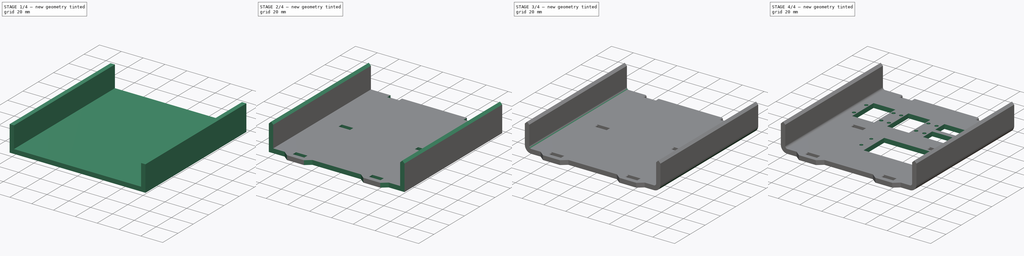
[diagram: build sequence overview — one tinted view per stage of 4, left to right]
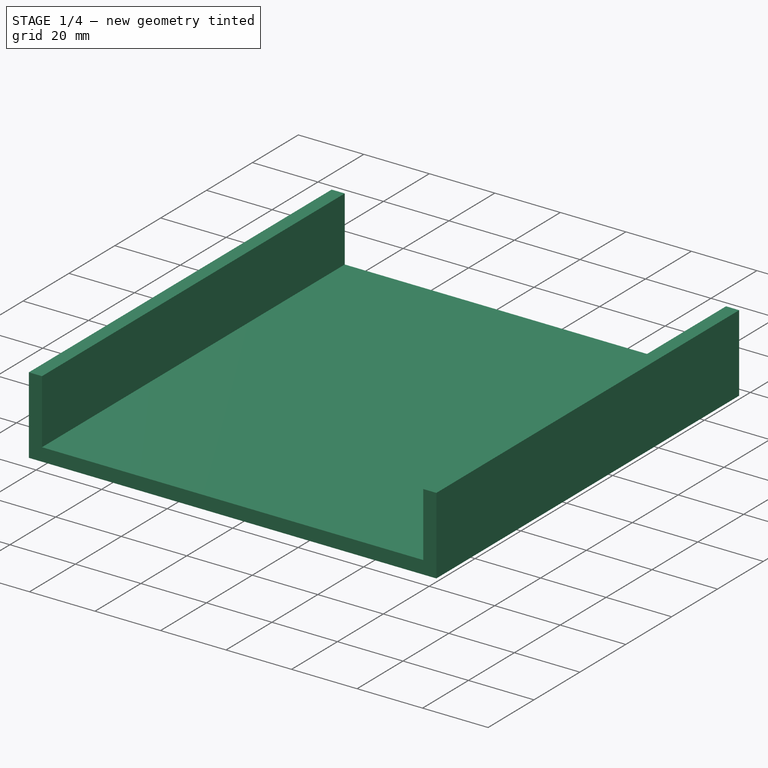
[diagram: stage 1 of 4 — iso view after this stage's code; geometry added in this stage tinted green]
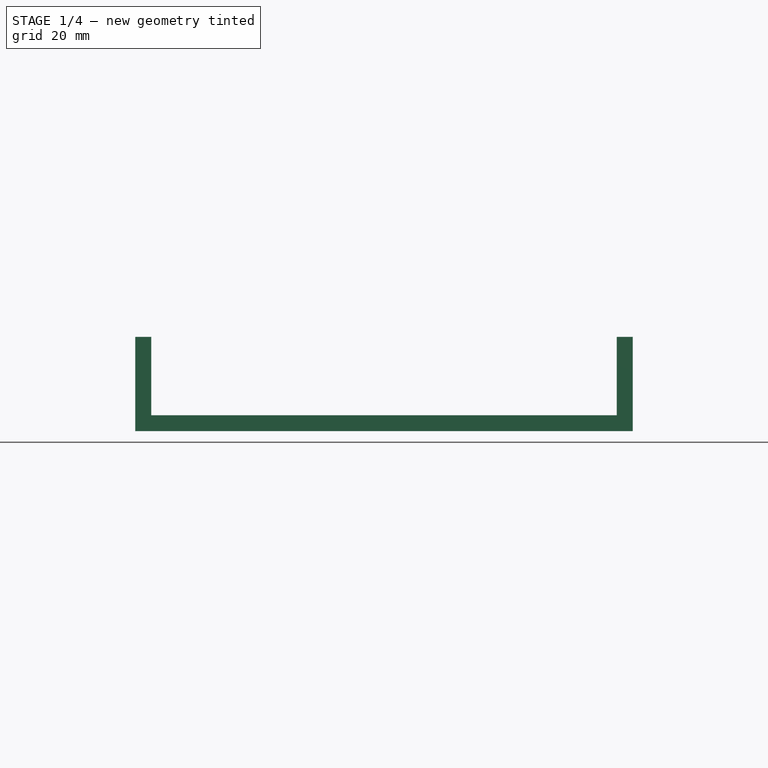
[diagram: stage 1 of 4 — front view after this stage's code; geometry added in this stage tinted green]
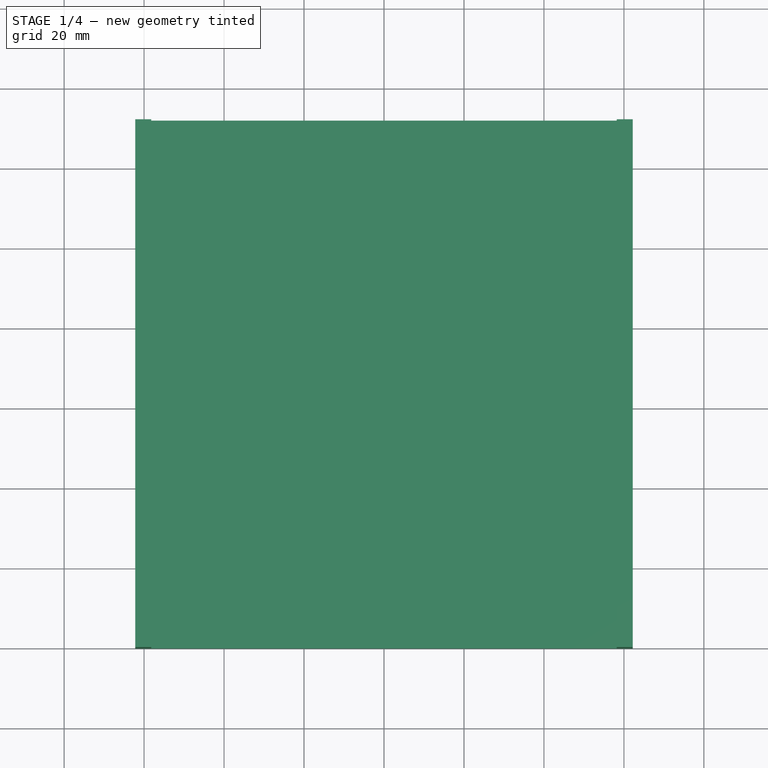
[diagram: stage 1 of 4 — top view after this stage's code; geometry added in this stage tinted green]
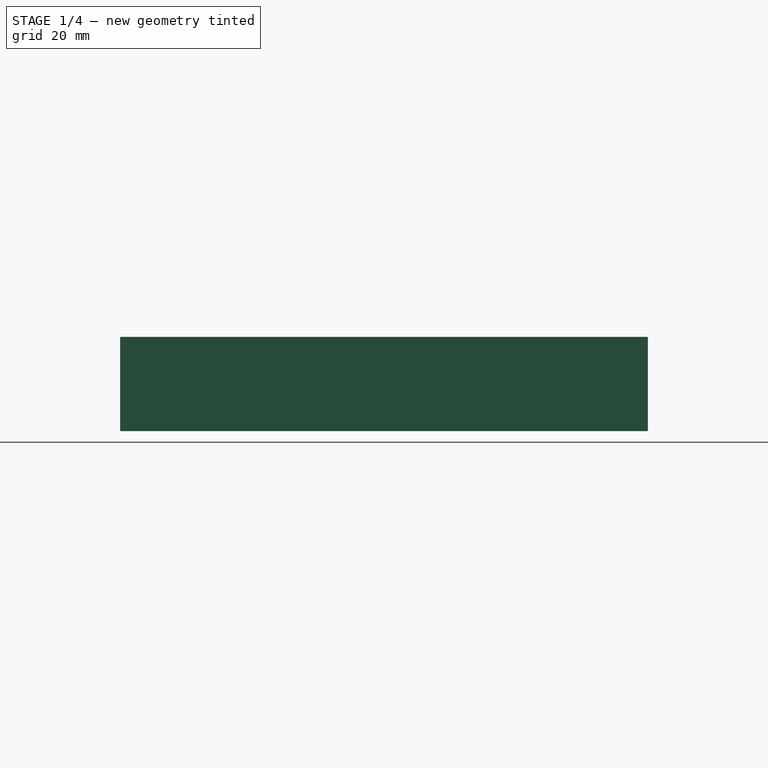
[diagram: stage 1 of 4 — right view after this stage's code; geometry added in this stage tinted green]
FCSTD DOCUMENT  (FreeCAD 0.18R16131 (Git))
Label: Back
License: All rights reserved
LicenseURL: http://en.wikipedia.org/wiki/All_rights_reserved
objects: Sketcher::SketchObject×5, PartDesign::Pad×3, Part::Fillet×3, PartDesign::Pocket×2, PartDesign::Body×2, Part::FeaturePython×1, PartDesign::FeatureBase×1, App::Part×1
note: 22 computed .brp shape members not serialized (recipe doc carries the construction recipe); baked Part::Feature solids carry a one-line shape summary decoded from their .brp

FEATURE [Sketcher::SketchObject] Sketch
  MapMode = 5
  Support = -> [XY_Plane001]
  sketch-geometry (4):
    g0: LineSegment StartX=-62.2 StartY=0 StartZ=0 EndX=62.2 EndY=0 EndZ=0
    g1: LineSegment StartX=62.2 StartY=0 StartZ=0 EndX=62.2 EndY=132 EndZ=0
    g2: LineSegment StartX=62.2 StartY=132 StartZ=0 EndX=-62.2 EndY=132 EndZ=0
    g3: LineSegment StartX=-62.2 StartY=132 StartZ=0 EndX=-62.2 EndY=0 EndZ=0
  constraints (11):
    c: Coincident(g0,g1)
    c: Coincident(g1,g2)
    c: Coincident(g2,g3)
    c: Coincident(g3,g0)
    c: Horizontal(g2)
    c: Vertical(g1)
    c: Vertical(g3)
    c: PointOnObject(g0,g-1)
    c: Symmetric(g0,g0,g-2)
    c: Distance(g0) = 124.4
    c: Distance(g3) = 132
FEATURE [PartDesign::Pad] Pad
  Length = 4
  Length2 = 100
  Profile = -> Sketch
  Reversed = true
  Type = 0
FEATURE [Sketcher::SketchObject] Sketch001
  MapMode = 5
  Support = -> [XY_Plane001]
  sketch-geometry (8):
    g0: LineSegment StartX=-58.2 StartY=0 StartZ=0 EndX=-62.2 EndY=0 EndZ=0
    g1: LineSegment StartX=-62.2 StartY=0 StartZ=0 EndX=-62.2 EndY=132 EndZ=0
    g2: LineSegment StartX=-62.2 StartY=132 StartZ=0 EndX=-58.2 EndY=132 EndZ=0
    g3: LineSegment StartX=-58.2 StartY=132 StartZ=0 EndX=-58.2 EndY=0 EndZ=0
    g4: LineSegment StartX=58.2 StartY=0 StartZ=0 EndX=62.2 EndY=0 EndZ=0
    g5: LineSegment StartX=62.2 StartY=0 StartZ=0 EndX=62.2 EndY=132 EndZ=0
    g6: LineSegment StartX=62.2 StartY=132 StartZ=0 EndX=58.2 EndY=132 EndZ=0
    g7: LineSegment StartX=58.2 StartY=132 StartZ=0 EndX=58.2 EndY=0 EndZ=0
  constraints (23):
    c: Coincident(g0,g1)
    c: Coincident(g1,g2)
    c: Coincident(g2,g3)
    c: Coincident(g3,g0)
    c: Horizontal(g0)
    c: Horizontal(g2)
    c: Vertical(g1)
    c: Vertical(g3)
    c: Coincident(g4,g5)
    c: Coincident(g5,g6)
    c: Coincident(g6,g7)
    c: Coincident(g7,g4)
    c: Horizontal(g4)
    c: Horizontal(g6)
    c: Vertical(g5)
    c: Vertical(g7)
    c: Symmetric(g0,g4,g-2)
    c: PointOnObject(g0,g-1)
    c: Distance(g3) = 132
    c: Equal(g3,g7)
    c: Distance(g0,g4) = 116.4
    c: Equal(g2,g6)
    c: Distance(g2) = 4
FEATURE [PartDesign::Pad] Pad001
  BaseFeature = -> Pad
  Length = 19.6
  Length2 = 100
  Profile = -> Sketch001
  Type = 0
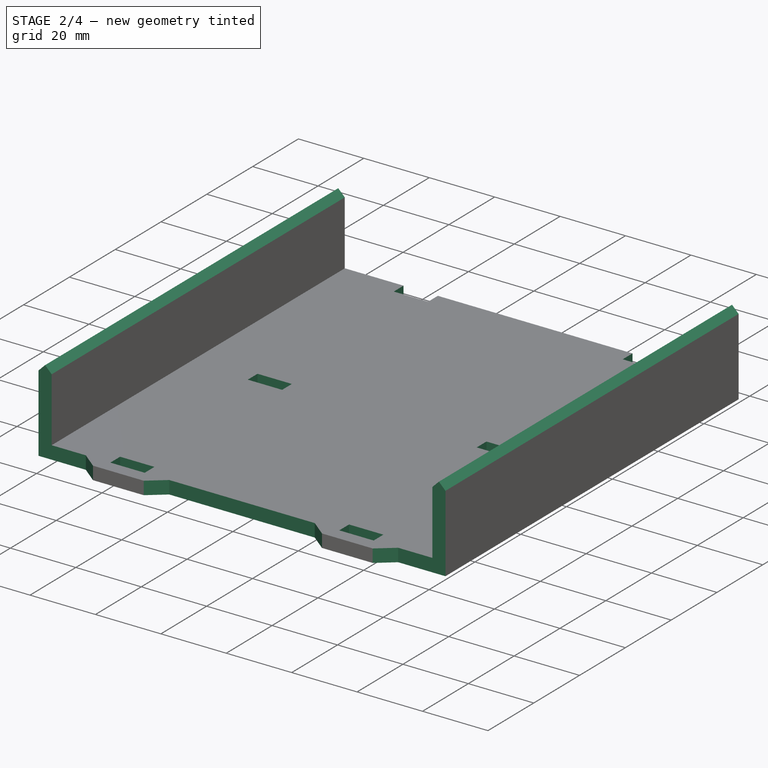
[diagram: stage 2 of 4 — iso view after this stage's code; geometry added in this stage tinted green]
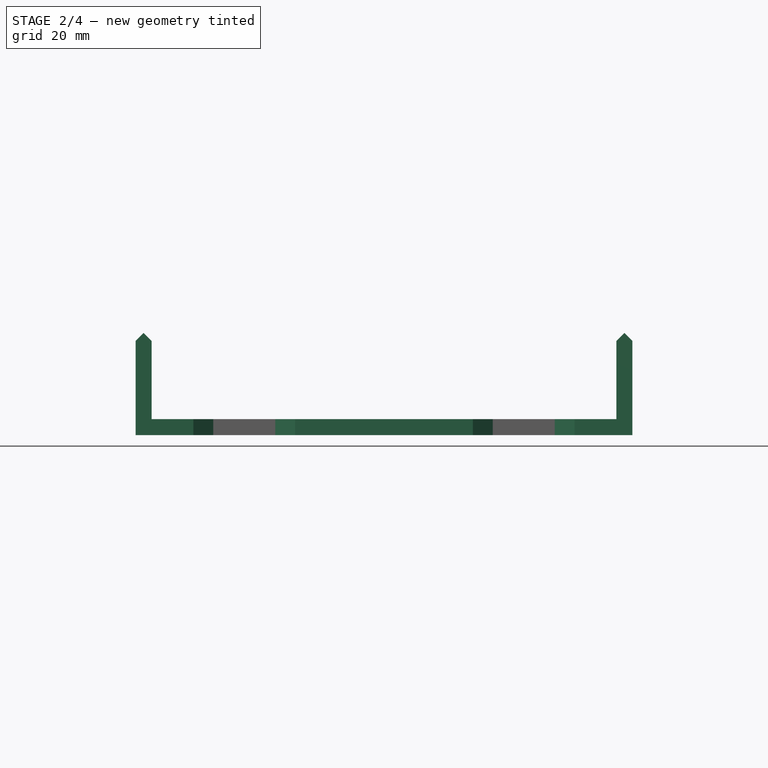
[diagram: stage 2 of 4 — front view after this stage's code; geometry added in this stage tinted green]
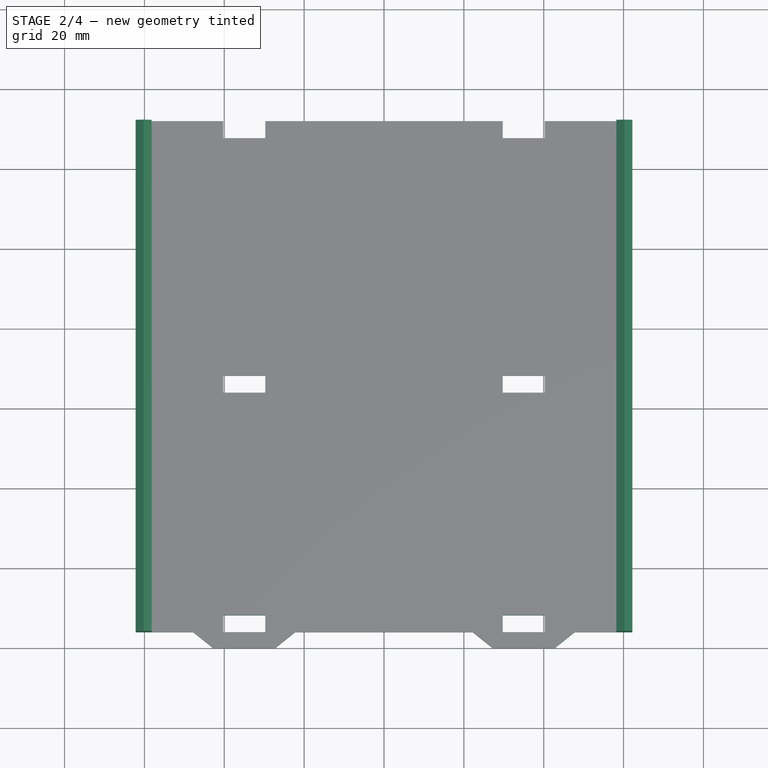
[diagram: stage 2 of 4 — top view after this stage's code; geometry added in this stage tinted green]
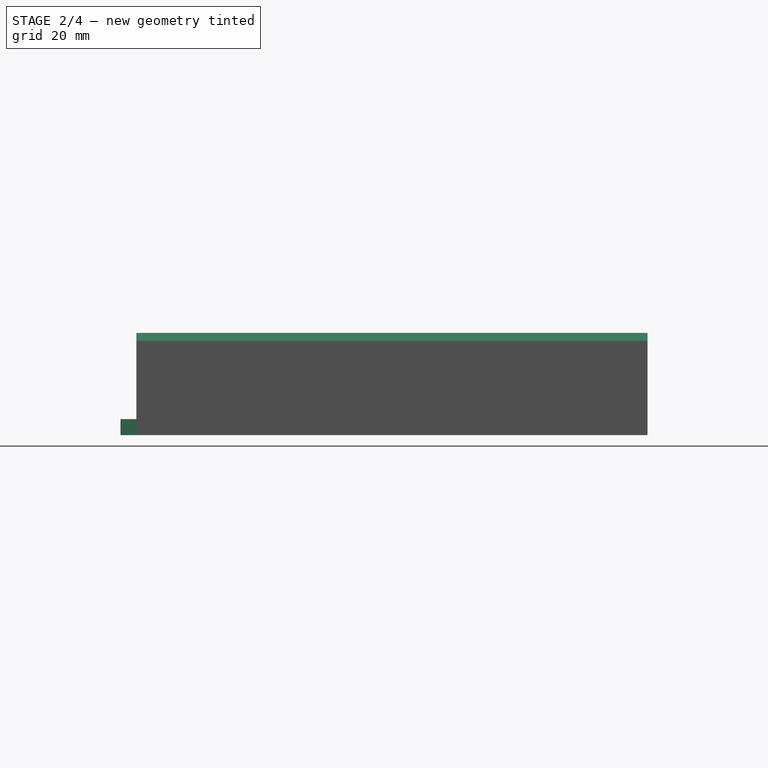
[diagram: stage 2 of 4 — right view after this stage's code; geometry added in this stage tinted green]
FEATURE [Sketcher::SketchObject] Sketch002
  MapMode = 5
  Placement = pos=(0,0,0) rot=(1,0,0;1.5708rad)
  Support = -> [XZ_Plane001]
  sketch-geometry (6):
    g0: LineSegment StartX=-58.2 StartY=19.6 StartZ=0 EndX=-62.2 EndY=19.6 EndZ=0
    g1: LineSegment StartX=-62.2 StartY=19.6 StartZ=0 EndX=-60.2 EndY=21.6 EndZ=0
    g2: LineSegment StartX=-60.2 StartY=21.6 StartZ=0 EndX=-58.2 EndY=19.6 EndZ=0
    g3: LineSegment StartX=58.2 StartY=19.6 StartZ=0 EndX=62.2 EndY=19.6 EndZ=0
    g4: LineSegment StartX=62.2 StartY=19.6 StartZ=0 EndX=60.2 EndY=21.6 EndZ=0
    g5: LineSegment StartX=60.2 StartY=21.6 StartZ=0 EndX=58.2 EndY=19.6 EndZ=0
  constraints (17):
    c: Coincident(g2,g1)
    c: Coincident(g2,g0)
    c: Coincident(g1,g0)
    c: Horizontal(g0)
    c: Distance(g0) = 4
    c: Distance(g1,g0) = 2
    c: Equal(g1,g2)
    c: Coincident(g5,g4)
    c: Coincident(g5,g3)
    c: Coincident(g4,g3)
    c: Horizontal(g3)
    c: Equal(g4,g5)
    c: Equal(g0,g3)
    c: Equal(g5,g1)
    c: Symmetric(g3,g0,g-2)
    c: DistanceY(g-1,g0) = 19.6
    c: DistanceX(g-2,g0) = -62.2
FEATURE [PartDesign::Pad] Pad002
  BaseFeature = -> Pad001
  Length = 132
  Length2 = 100
  Profile = -> Sketch002
  Reversed = true
  Type = 0
FEATURE [Sketcher::SketchObject] Sketch003
  MapMode = 5
  Support = -> [XY_Plane001]
  sketch-geometry (48):
    g0: LineSegment StartX=-40.25 StartY=8.25 StartZ=0 EndX=-29.75 EndY=8.25 EndZ=0
    g1: LineSegment StartX=-29.75 StartY=8.25 StartZ=0 EndX=-29.75 EndY=4 EndZ=0
    g2: LineSegment StartX=-29.75 StartY=4 StartZ=0 EndX=-40.25 EndY=4 EndZ=0
    g3: LineSegment StartX=-40.25 StartY=4 StartZ=0 EndX=-40.25 EndY=8.25 EndZ=0
    g4: LineSegment StartX=-40.25 StartY=68.25 StartZ=0 EndX=-29.75 EndY=68.25 EndZ=0
    g5: LineSegment StartX=-29.75 StartY=68.25 StartZ=0 EndX=-29.75 EndY=64 EndZ=0
    g6: LineSegment StartX=-29.75 StartY=64 StartZ=0 EndX=-40.25 EndY=64 EndZ=0
    g7: LineSegment StartX=-40.25 StartY=64 StartZ=0 EndX=-40.25 EndY=68.25 EndZ=0
    g8: LineSegment StartX=-40.25 StartY=132 StartZ=0 EndX=-29.75 EndY=132 EndZ=0
    g9: LineSegment StartX=-29.75 StartY=132 StartZ=0 EndX=-29.75 EndY=127.75 EndZ=0
    g10: LineSegment StartX=-29.75 StartY=127.75 StartZ=0 EndX=-40.25 EndY=127.75 EndZ=0
    g11: LineSegment StartX=-40.25 StartY=127.75 StartZ=0 EndX=-40.25 EndY=132 EndZ=0
    g12: LineSegment StartX=40.25 StartY=8.25 StartZ=0 EndX=29.75 EndY=8.25 EndZ=0
    g13: LineSegment StartX=29.75 StartY=8.25 StartZ=0 EndX=29.75 EndY=4 EndZ=0
    g14: LineSegment StartX=29.75 StartY=4 StartZ=0 EndX=40.25 EndY=4 EndZ=0
    g15: LineSegment StartX=40.25 StartY=4 StartZ=0 EndX=40.25 EndY=8.25 EndZ=0
    g16: LineSegment StartX=40.25 StartY=68.25 StartZ=0 EndX=29.75 EndY=68.25 EndZ=0
    g17: LineSegment StartX=29.75 StartY=68.25 StartZ=0 EndX=29.75 EndY=64 EndZ=0
    g18: LineSegment StartX=29.75 StartY=64 StartZ=0 EndX=40.25 EndY=64 EndZ=0
    g19: LineSegment StartX=40.25 StartY=64 StartZ=0 EndX=40.25 EndY=68.25 EndZ=0
    g20: LineSegment StartX=40.25 StartY=132 StartZ=0 EndX=29.75 EndY=132 EndZ=0
    g21: LineSegment StartX=29.75 StartY=132 StartZ=0 EndX=29.75 EndY=127.75 EndZ=0
    g22: LineSegment StartX=29.75 StartY=127.75 StartZ=0 EndX=40.25 EndY=127.75 EndZ=0
    g23: LineSegment StartX=40.25 StartY=127.75 StartZ=0 EndX=40.25 EndY=132 EndZ=0
    g24: LineSegment [constr] StartX=-29.75 StartY=8.25 StartZ=0 EndX=-29.75 EndY=64 EndZ=0
    g25: LineSegment [constr] StartX=-29.75 StartY=68.25 StartZ=0 EndX=-29.75 EndY=127.75 EndZ=0
    g26: LineSegment [constr] StartX=29.75 StartY=127.75 StartZ=0 EndX=29.75 EndY=68.25 EndZ=0
    g27: LineSegment [constr] StartX=29.75 StartY=64 StartZ=0 EndX=29.75 EndY=8.25 EndZ=0
    g28: LineSegment StartX=-42.75 StartY=0 StartZ=0 EndX=-27.25 EndY=0 EndZ=0
    g29: LineSegment StartX=-27.25 StartY=0 StartZ=0 EndX=-22.25 EndY=4 EndZ=0
    g30: LineSegment StartX=-22.25 StartY=4 StartZ=0 EndX=22.25 EndY=4 EndZ=0
    g31: LineSegment StartX=22.25 StartY=4 StartZ=0 EndX=27.25 EndY=0 EndZ=0
    g32: LineSegment StartX=27.25 StartY=0 StartZ=0 EndX=42.75 EndY=4e-16 EndZ=0
    g33: LineSegment StartX=42.75 StartY=4e-16 StartZ=0 EndX=47.75 EndY=4 EndZ=0
    g34: LineSegment StartX=47.75 StartY=4 StartZ=0 EndX=90 EndY=4 EndZ=0
    g35: LineSegment StartX=90 StartY=4 StartZ=0 EndX=90 EndY=-46 EndZ=0
    g36: LineSegment StartX=90 StartY=-46 StartZ=0 EndX=-90 EndY=-46 EndZ=0
    g37: LineSegment StartX=-42.75 StartY=0 StartZ=0 EndX=-47.75 EndY=4 EndZ=0
    g38: LineSegment StartX=-47.75 StartY=4 StartZ=0 EndX=-90 EndY=4 EndZ=0
    g39: LineSegment StartX=-90 StartY=4 StartZ=0 EndX=-90 EndY=-46 EndZ=0
    g40: LineSegment [constr] StartX=-47.75 StartY=4 StartZ=0 EndX=-40.25 EndY=4 EndZ=0
    g41: LineSegment [constr] StartX=-29.75 StartY=4 StartZ=0 EndX=-22.25 EndY=4 EndZ=0
    g42: LineSegment [constr] StartX=22.25 StartY=4 StartZ=0 EndX=29.75 EndY=4 EndZ=0
    g43: LineSegment [constr] StartX=40.25 StartY=4 StartZ=0 EndX=47.75 EndY=4 EndZ=0
    g44: LineSegment [constr] StartX=29.75 StartY=4 StartZ=0 EndX=27.25 EndY=0 EndZ=0
    g45: LineSegment [constr] StartX=40.25 StartY=4 StartZ=0 EndX=42.75 EndY=4e-16 EndZ=0
    g46: LineSegment [constr] StartX=-40.25 StartY=4 StartZ=0 EndX=-42.75 EndY=0 EndZ=0
    g47: LineSegment [constr] StartX=-29.75 StartY=4 StartZ=0 EndX=-27.25 EndY=0 EndZ=0
  constraints (131):
    c: Coincident(g0,g1)
    c: Coincident(g1,g2)
    c: Coincident(g2,g3)
    c: Coincident(g3,g0)
    c: Horizontal(g0)
    c: Horizontal(g2)
    c: Vertical(g1)
    c: Vertical(g3)
    c: Coincident(g4,g5)
    c: Coincident(g5,g6)
    c: Coincident(g6,g7)
    c: Coincident(g7,g4)
    c: Horizontal(g4)
    c: Horizontal(g6)
    c: Vertical(g5)
    c: Vertical(g7)
    c: Coincident(g8,g9)
    c: Coincident(g9,g10)
    c: Coincident(g10,g11)
    c: Coincident(g11,g8)
    c: Horizontal(g8)
    c: Horizontal(g10)
    c: Vertical(g9)
    c: Vertical(g11)
    c: Coincident(g12,g13)
    c: Coincident(g13,g14)
    c: Coincident(g14,g15)
    c: Coincident(g15,g12)
    c: Horizontal(g12)
    c: Horizontal(g14)
    c: Vertical(g13)
    c: Vertical(g15)
    c: Coincident(g16,g17)
    c: Coincident(g17,g18)
    c: Coincident(g18,g19)
    c: Coincident(g19,g16)
    c: Horizontal(g16)
    c: Horizontal(g18)
    c: Vertical(g17)
    c: Vertical(g19)
    c: Coincident(g20,g21)
    c: Coincident(g21,g22)
    c: Coincident(g22,g23)
    c: Coincident(g23,g20)
    c: Horizontal(g20)
    c: Horizontal(g22)
    c: Vertical(g21)
    c: Vertical(g23)
    c: Equal(g10,g22)
    c: Equal(g22,g18)
    c: Equal(g18,g6)
    c: Equal(g6,g2)
    c: Equal(g2,g14)
    c: Equal(g11,g21)
    c: Equal(g21,g17)
    c: Equal(g17,g7)
    c: Equal(g7,g3)
    c: Equal(g3,g13)
    c: Coincident(g24,g0)
    c: Coincident(g24,g5)
    c: Vertical(g24)
    c: Coincident(g25,g4)
    c: Coincident(g25,g9)
    c: Vertical(g25)
    c: Coincident(g26,g21)
    c: Coincident(g26,g16)
    c: Coincident(g27,g17)
    c: Coincident(g27,g12)
    c: Vertical(g27)
    c: Vertical(g26)
    c: Symmetric(g1,g13,g-2)
    c: Distance(g1,g13) = 59.5
    c: Distance(g2) = 10.5
    c: Distance(g1) = 4.25
    c: DistanceY(g-1,g2) = 4
    c: Distance(g24) = 55.75
    c: Distance(g25) = 59.5
    c: Equal(g24,g27)
    c: Equal(g25,g26)
    c: PointOnObject(g28,g-1)
    c: Horizontal(g28)
    c: Coincident(g29,g28)
    c: Coincident(g30,g29)
    c: Horizontal(g30)
    c: Coincident(g31,g30)
    c: PointOnObject(g31,g-1)
    c: Coincident(g32,g31)
    c: Coincident(g33,g32)
    c: Coincident(g34,g33)
    c: Horizontal(g34)
    c: Coincident(g35,g34)
    c: Vertical(g35)
    c: Coincident(g36,g35)
    c: Horizontal(g36)
    c: Coincident(g37,g28)
    c: Coincident(g38,g37)
    c: Coincident(g39,g38)
    c: Coincident(g39,g36)
    c: Equal(g39,g35)
    c: Vertical(g39)
    c: Equal(g37,g29)
    c: Equal(g29,g31)
    c: Equal(g31,g33)
    c: Coincident(g40,g37)
    c: Coincident(g40,g2)
    c: Coincident(g41,g1)
    c: Coincident(g41,g29)
    c: Coincident(g42,g30)
    c: Coincident(g42,g13)
    c: Coincident(g43,g14)
    c: Coincident(g43,g33)
    c: Equal(g41,g40)
    c: Equal(g42,g43)
    c: Coincident(g44,g13)
    c: Coincident(g44,g31)
    c: Coincident(g45,g14)
    c: Coincident(g45,g32)
    c: Coincident(g46,g2)
    c: Coincident(g46,g28)
    c: Coincident(g47,g1)
    c: Coincident(g47,g28)
    c: Equal(g46,g47)
    c: Equal(g47,g44)
    c: Equal(g44,g45)
    c: Equal(g32,g28)
    c: Horizontal(g41)
    c: DistanceX(g1,g28) = 2.5
    c: DistanceX(g28,g29) = 5
    c: Distance(g39) = 50
    c: Distance(g36) = 180
    c: Equal(g38,g34)
FEATURE [PartDesign::Pocket] Pocket
  BaseFeature = -> Pad002
  Length = 5
  Length2 = 100
  Midplane = true
  Profile = -> Sketch003
  Type = 1
FEATURE [PartDesign::Body] Body  label="BackPartBody"
  Group = -> [Sketch,Pad,Sketch001,Pad001,Sketch002,Pad002,Sketch003,Pocket]
  Origin = -> Origin001
  Tip = -> Pocket
FEATURE [Part::FeaturePython] refine  label="BackPartBody_Refined"  # WARN: FeaturePython — macro-defined, semantics opaque (R4)
  Base = -> Body
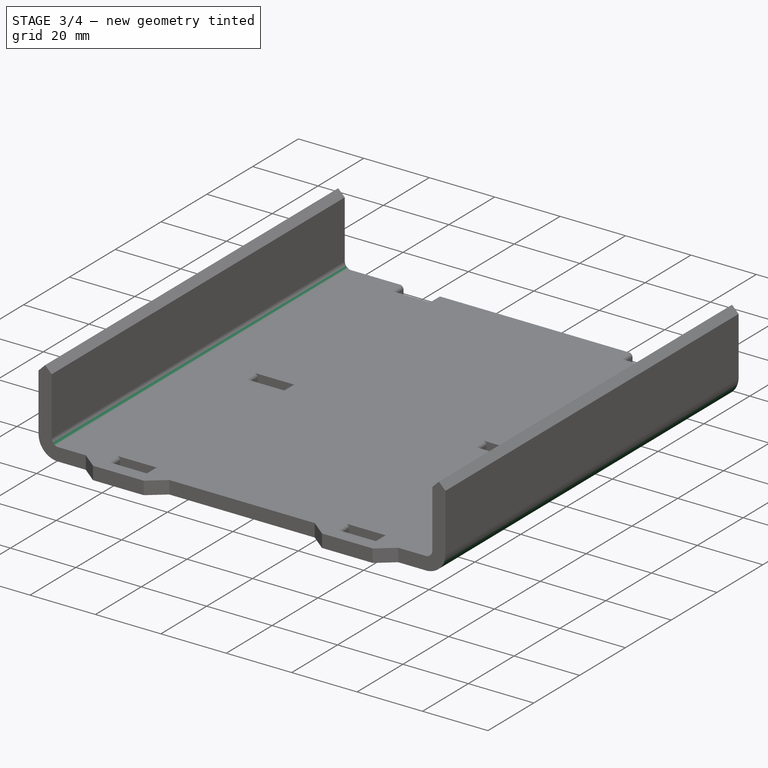
[diagram: stage 3 of 4 — iso view after this stage's code; geometry added in this stage tinted green]
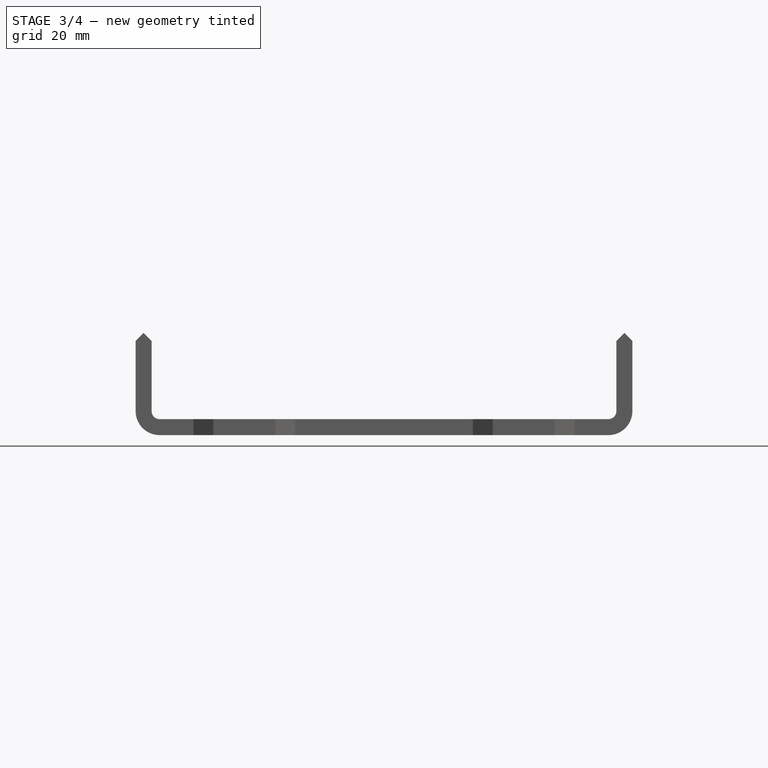
[diagram: stage 3 of 4 — front view after this stage's code; geometry added in this stage tinted green]
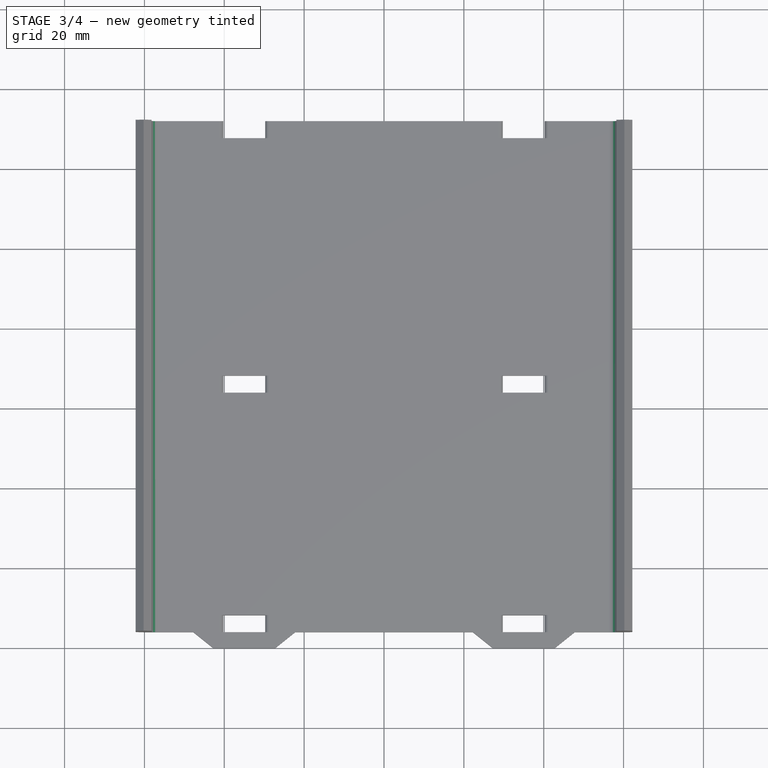
[diagram: stage 3 of 4 — top view after this stage's code; geometry added in this stage tinted green]
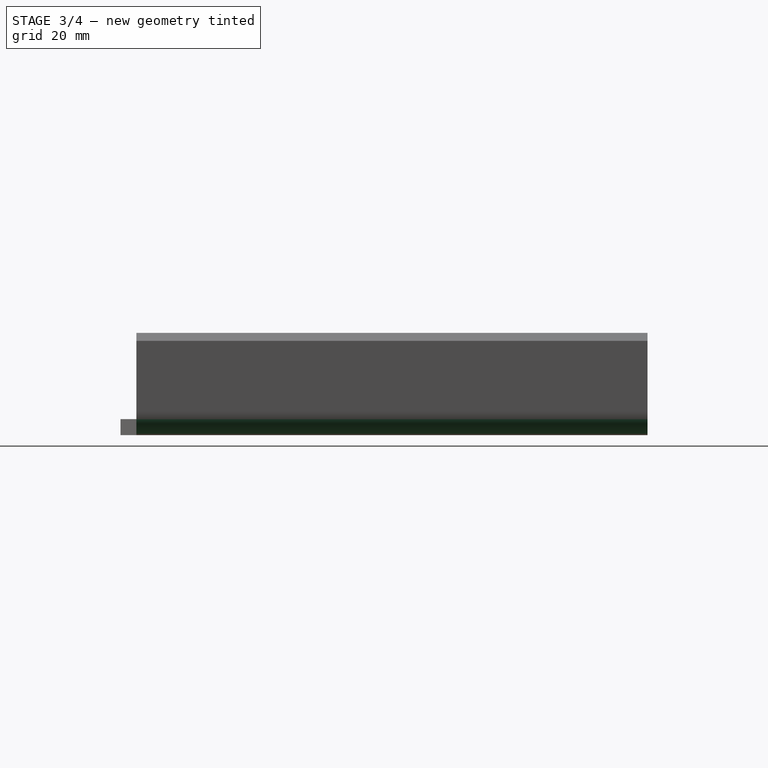
[diagram: stage 3 of 4 — right view after this stage's code; geometry added in this stage tinted green]
FEATURE [Part::Fillet] Fillet
  Base = -> refine
  Edges = 2 edges r=6: [Edge45,Edge55]
FEATURE [Part::Fillet] Fillet001
  Base = -> Fillet
  Edges = 2 edges r=2: [Edge128,Edge129]
FEATURE [Part::Fillet] Fillet002
  Base = -> Fillet001
  Edges = 12 edges r=1: [Edge18,Edge21,Edge25,Edge29,Edge36,Edge38,Edge40,Edge42,Edge43,Edge45,Edge47,Edge49]
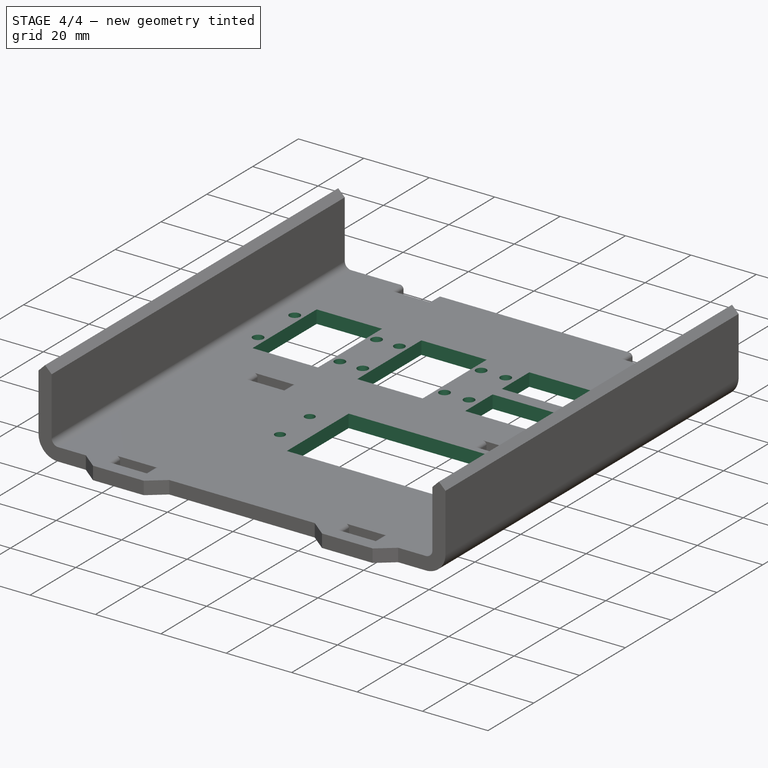
[diagram: stage 4 of 4 — iso view after this stage's code; geometry added in this stage tinted green]
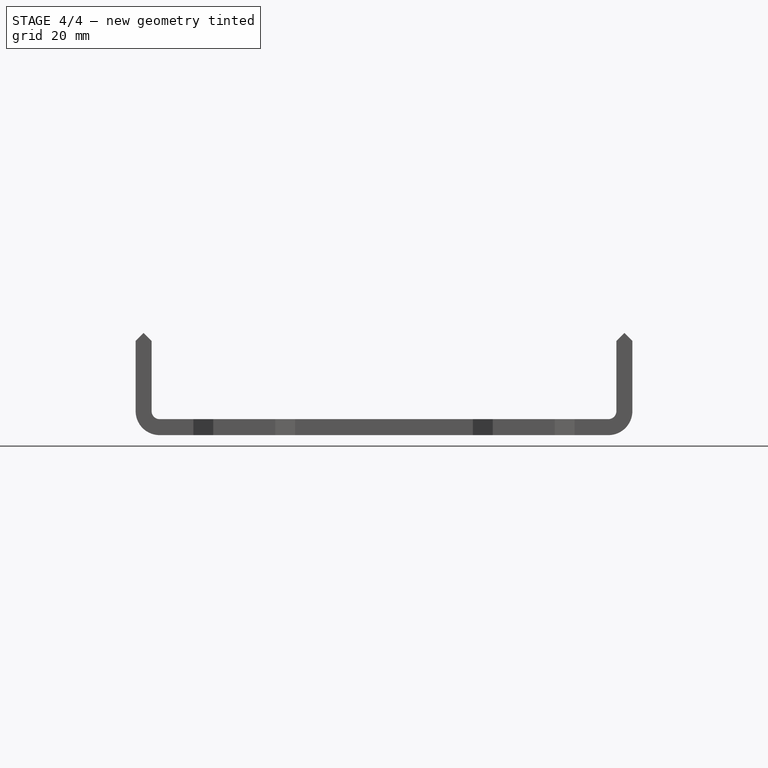
[diagram: stage 4 of 4 — front view after this stage's code; geometry added in this stage tinted green]
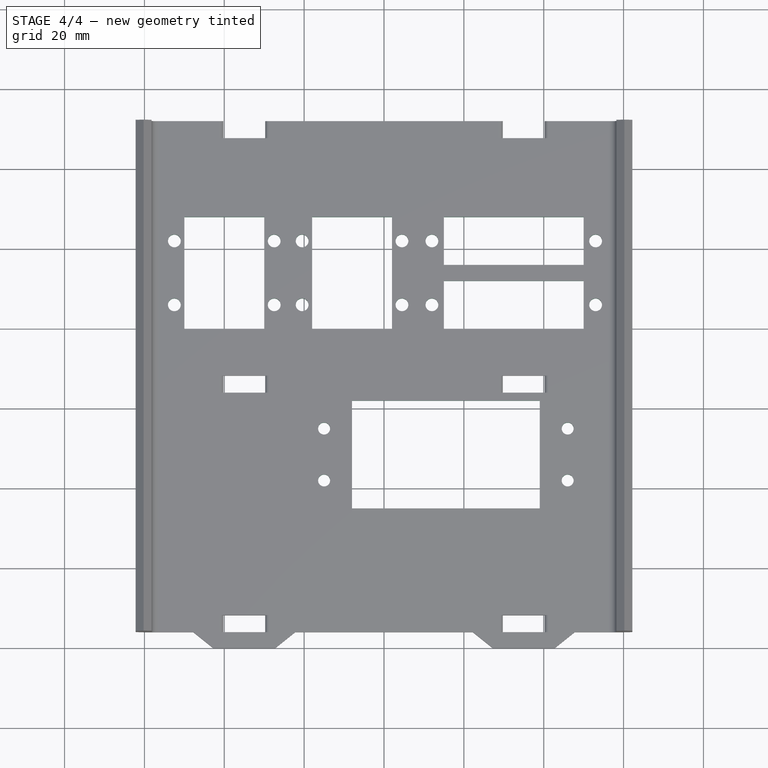
[diagram: stage 4 of 4 — top view after this stage's code; geometry added in this stage tinted green]
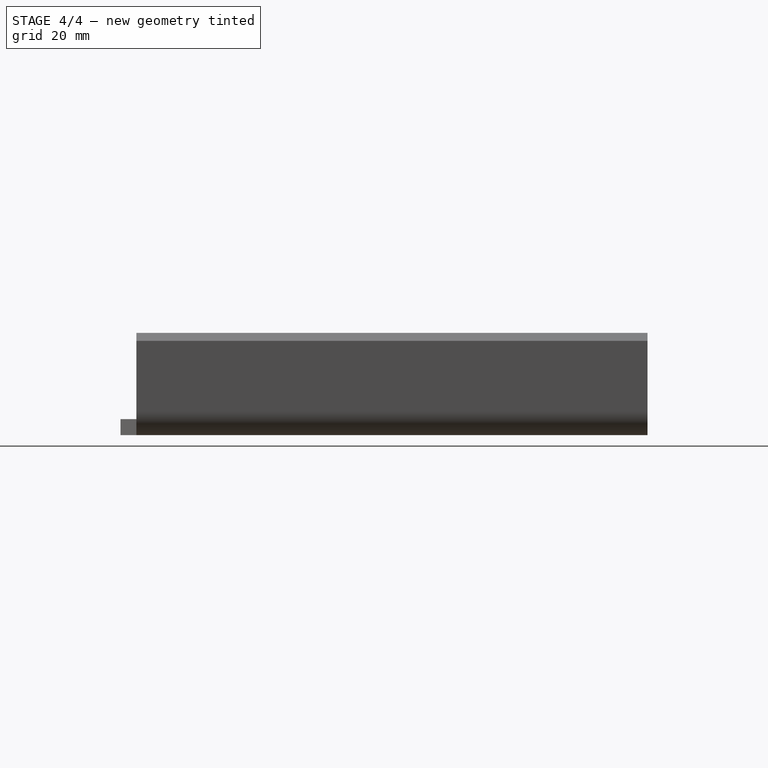
[diagram: stage 4 of 4 — right view after this stage's code; geometry added in this stage tinted green]
FEATURE [PartDesign::FeatureBase] BaseFeature
  BaseFeature = -> Fillet002
FEATURE [Sketcher::SketchObject] Sketch004
  MapMode = 5
  Support = -> [XY_Plane002]
  sketch-geometry (69):
    g0: LineSegment StartX=-50 StartY=108 StartZ=0 EndX=-30 EndY=108 EndZ=0
    g1: LineSegment StartX=-30 StartY=108 StartZ=0 EndX=-30 EndY=80 EndZ=0
    g2: LineSegment StartX=-30 StartY=80 StartZ=0 EndX=-50 EndY=80 EndZ=0
    g3: LineSegment StartX=-50 StartY=80 StartZ=0 EndX=-50 EndY=108 EndZ=0
    g4: Circle CenterX=-52.5 CenterY=102 CenterZ=0 NormalX=0 NormalY=0 NormalZ=1 AngleXU=0 Radius=1.6
    g5: Circle CenterX=-27.5 CenterY=102 CenterZ=0 NormalX=0 NormalY=0 NormalZ=1 AngleXU=0 Radius=1.6
    g6: Circle CenterX=-27.5 CenterY=86 CenterZ=0 NormalX=0 NormalY=0 NormalZ=1 AngleXU=0 Radius=1.6
    g7: Circle CenterX=-52.5 CenterY=86 CenterZ=0 NormalX=0 NormalY=0 NormalZ=1 AngleXU=0 Radius=1.6
    g8: LineSegment [constr] StartX=-52.5 StartY=102 StartZ=0 EndX=-52.5 EndY=86 EndZ=0
    g9: LineSegment [constr] StartX=-27.5 StartY=102 StartZ=0 EndX=-27.5 EndY=86 EndZ=0
    g10: LineSegment [constr] StartX=-52.5 StartY=102 StartZ=0 EndX=-27.5 EndY=102 EndZ=0
    g11: LineSegment [constr] StartX=-52.5 StartY=86 StartZ=0 EndX=-27.5 EndY=86 EndZ=0
    g12: LineSegment [constr] StartX=-52.5 StartY=102 StartZ=0 EndX=-50 EndY=108 EndZ=0
    g13: LineSegment [constr] StartX=-30 StartY=108 StartZ=0 EndX=-27.5 EndY=102 EndZ=0
    g14: LineSegment [constr] StartX=-27.5 StartY=86 StartZ=0 EndX=-30 EndY=80 EndZ=0
    g15: LineSegment [constr] StartX=-52.5 StartY=86 StartZ=0 EndX=-50 EndY=80 EndZ=0
    g16: LineSegment StartX=-18 StartY=108 StartZ=0 EndX=2 EndY=108 EndZ=0
    g17: LineSegment StartX=2 StartY=108 StartZ=0 EndX=2 EndY=80 EndZ=0
    g18: LineSegment StartX=2 StartY=80 StartZ=0 EndX=-18 EndY=80 EndZ=0
    g19: LineSegment StartX=-18 StartY=80 StartZ=0 EndX=-18 EndY=108 EndZ=0
    g20: Circle CenterX=-20.5 CenterY=102 CenterZ=0 NormalX=0 NormalY=0 NormalZ=1 AngleXU=0 Radius=1.6
    g21: Circle CenterX=4.5 CenterY=102 CenterZ=0 NormalX=0 NormalY=0 NormalZ=1 AngleXU=0 Radius=1.6
    g22: Circle CenterX=4.5 CenterY=86 CenterZ=0 NormalX=0 NormalY=0 NormalZ=1 AngleXU=0 Radius=1.6
    g23: Circle CenterX=-20.5 CenterY=86 CenterZ=0 NormalX=0 NormalY=0 NormalZ=1 AngleXU=0 Radius=1.6
    g24: LineSegment [constr] StartX=-20.5 StartY=102 StartZ=0 EndX=-20.5 EndY=86 EndZ=0
    g25: LineSegment [constr] StartX=4.5 StartY=102 StartZ=0 EndX=4.5 EndY=86 EndZ=0
    g26: LineSegment [constr] StartX=-20.5 StartY=102 StartZ=0 EndX=4.5 EndY=102 EndZ=0
    g27: LineSegment [constr] StartX=-20.5 StartY=86 StartZ=0 EndX=4.5 EndY=86 EndZ=0
    g28: LineSegment [constr] StartX=-20.5 StartY=102 StartZ=0 EndX=-18 EndY=108 EndZ=0
    g29: LineSegment [constr] StartX=2 StartY=108 StartZ=0 EndX=4.5 EndY=102 EndZ=0
    g30: LineSegment [constr] StartX=4.5 StartY=86 StartZ=0 EndX=2 EndY=80 EndZ=0
    g31: LineSegment [constr] StartX=-20.5 StartY=86 StartZ=0 EndX=-18 EndY=80 EndZ=0
    g32: LineSegment [constr] StartX=-50 StartY=108 StartZ=0 EndX=-18 EndY=108 EndZ=0
    g33: LineSegment StartX=15 StartY=108 StartZ=0 EndX=50 EndY=108 EndZ=0
    g34: LineSegment StartX=50 StartY=108 StartZ=0 EndX=50 EndY=96 EndZ=0
    g35: LineSegment StartX=50 StartY=96 StartZ=0 EndX=15 EndY=96 EndZ=0
    g36: LineSegment StartX=15 StartY=96 StartZ=0 EndX=15 EndY=108 EndZ=0
    g37: LineSegment [constr] StartX=2 StartY=108 StartZ=0 EndX=15 EndY=108 EndZ=0
    g38: Circle CenterX=12 CenterY=102 CenterZ=0 NormalX=0 NormalY=0 NormalZ=1 AngleXU=0 Radius=1.6
    g39: Circle CenterX=53 CenterY=102 CenterZ=0 NormalX=0 NormalY=0 NormalZ=1 AngleXU=0 Radius=1.6
    g40: LineSegment [constr] StartX=15 StartY=108 StartZ=0 EndX=12 EndY=102 EndZ=0
    g41: LineSegment [constr] StartX=50 StartY=108 StartZ=0 EndX=53 EndY=102 EndZ=0
    g42: LineSegment [constr] StartX=53 StartY=102 StartZ=0 EndX=50 EndY=96 EndZ=0
    g43: LineSegment [constr] StartX=12 StartY=102 StartZ=0 EndX=15 EndY=96 EndZ=0
    g44: LineSegment StartX=15 StartY=92 StartZ=0 EndX=50 EndY=92 EndZ=0
    g45: LineSegment StartX=50 StartY=92 StartZ=0 EndX=50 EndY=80 EndZ=0
    g46: LineSegment StartX=50 StartY=80 StartZ=0 EndX=15 EndY=80 EndZ=0
    g47: LineSegment StartX=15 StartY=80 StartZ=0 EndX=15 EndY=92 EndZ=0
    g48: Circle CenterX=12 CenterY=86 CenterZ=0 NormalX=0 NormalY=0 NormalZ=1 AngleXU=0 Radius=1.6
    g49: Circle CenterX=53 CenterY=86 CenterZ=0 NormalX=0 NormalY=0 NormalZ=1 AngleXU=0 Radius=1.6
    g50: LineSegment [constr] StartX=15 StartY=80 StartZ=0 EndX=12 EndY=86 EndZ=0
    g51: LineSegment [constr] StartX=12 StartY=86 StartZ=0 EndX=15 EndY=92 EndZ=0
    g52: LineSegment [constr] StartX=53 StartY=86 StartZ=0 EndX=50 EndY=92 EndZ=0
    g53: LineSegment [constr] StartX=53 StartY=86 StartZ=0 EndX=50 EndY=80 EndZ=0
    g54: LineSegment [constr] StartX=2 StartY=80 StartZ=0 EndX=15 EndY=80 EndZ=0
    g55: LineSegment StartX=-8 StartY=62 StartZ=0 EndX=39 EndY=62 EndZ=0
    g56: LineSegment StartX=39 StartY=62 StartZ=0 EndX=39 EndY=35 EndZ=0
    g57: LineSegment StartX=39 StartY=35 StartZ=0 EndX=-8 EndY=35 EndZ=0
    g58: LineSegment StartX=-8 StartY=35 StartZ=0 EndX=-8 EndY=62 EndZ=0
    g59: Circle CenterX=46 CenterY=55 CenterZ=0 NormalX=0 NormalY=0 NormalZ=1 AngleXU=0 Radius=1.5
    g60: Circle CenterX=46 CenterY=42 CenterZ=0 NormalX=0 NormalY=0 NormalZ=1 AngleXU=0 Radius=1.5
    g61: Circle CenterX=-15 CenterY=55 CenterZ=0 NormalX=0 NormalY=0 NormalZ=1 AngleXU=0 Radius=1.5
    g62: Circle CenterX=-15 CenterY=42 CenterZ=0 NormalX=0 NormalY=0 NormalZ=1 AngleXU=0 Radius=1.5
    g63: LineSegment [constr] StartX=-15 StartY=55 StartZ=0 EndX=-15 EndY=42 EndZ=0
    g64: LineSegment [constr] StartX=46 StartY=55 StartZ=0 EndX=46 EndY=42 EndZ=0
    g65: LineSegment [constr] StartX=-15 StartY=55 StartZ=0 EndX=-8 EndY=62 EndZ=0
    g66: LineSegment [constr] StartX=-15 StartY=42 StartZ=0 EndX=-8 EndY=35 EndZ=0
    g67: LineSegment [constr] StartX=46 StartY=42 StartZ=0 EndX=39 EndY=35 EndZ=0
    g68: LineSegment [constr] StartX=46 StartY=55 StartZ=0 EndX=39 EndY=62 EndZ=0
  constraints (174):
    c: Coincident(g0,g1)
    c: Coincident(g1,g2)
    c: Coincident(g2,g3)
    c: Coincident(g3,g0)
    c: Horizontal(g0)
    c: Horizontal(g2)
    c: Vertical(g1)
    c: Vertical(g3)
    c: Distance(g0) = 20
    c: Distance(g3) = 28
    c: Equal(g4,g7)
    c: Equal(g7,g6)
    c: Equal(g6,g5)
    c: Radius(g4) = 1.6
    c: Coincident(g8,g4)
    c: Coincident(g8,g7)
    c: Vertical(g8)
    c: Coincident(g9,g5)
    c: Coincident(g9,g6)
    c: Vertical(g9)
    c: Coincident(g10,g4)
    c: Coincident(g10,g5)
    c: Horizontal(g10)
    c: Coincident(g11,g7)
    c: Coincident(g11,g6)
    c: Distance(g8) = 16
    c: Coincident(g12,g4)
    c: Coincident(g12,g0)
    c: Coincident(g13,g0)
    c: Coincident(g13,g5)
    c: Coincident(g14,g6)
    c: Coincident(g14,g1)
    c: Coincident(g15,g7)
    c: Coincident(g15,g2)
    c: Equal(g12,g13)
    c: Equal(g13,g14)
    c: Equal(g14,g15)
    c: Distance(g10) = 25
    c: DistanceY(g-1,g2) = 80
    c: Coincident(g16,g17)
    c: Coincident(g17,g18)
    c: Coincident(g18,g19)
    c: Coincident(g19,g16)
    c: Horizontal(g16)
    c: Horizontal(g18)
    c: Vertical(g17)
    c: Vertical(g19)
    c: Equal(g0,g16) = 20
    c: Equal(g3,g19) = 28
    c: Equal(g20,g23)
    c: Equal(g23,g22)
    c: Equal(g22,g21)
    c: Equal(g4,g20) = 1.6
    c: Coincident(g24,g20)
    c: Coincident(g24,g23)
    c: Vertical(g24)
    c: Coincident(g25,g21)
    c: Coincident(g25,g22)
    c: Vertical(g25)
    c: Coincident(g26,g20)
    c: Coincident(g26,g21)
    c: Horizontal(g26)
    c: Coincident(g27,g23)
    c: Coincident(g27,g22)
    c: Equal(g8,g24) = 16
    c: Coincident(g28,g20)
    c: Coincident(g28,g16)
    c: Coincident(g29,g16)
    c: Coincident(g29,g21)
    c: Coincident(g30,g22)
    c: Coincident(g30,g17)
    c: Coincident(g31,g23)
    c: Coincident(g31,g18)
    c: Equal(g28,g29)
    c: Equal(g29,g30)
    c: Equal(g30,g31)
    c: Equal(g10,g26) = 25
    c: Coincident(g0,g32)
    c: Coincident(g16,g32)
    c: Distance(g32) = 32
    c: Horizontal(g32)
    c: DistanceX(g-2,g2) = -50
    c: Coincident(g33,g34)
    c: Coincident(g34,g35)
    c: Coincident(g35,g36)
    c: Coincident(g36,g33)
    c: Horizontal(g33)
    c: Horizontal(g35)
    c: Vertical(g34)
    c: Vertical(g36)
    c: Coincident(g37,g16)
    c: Coincident(g37,g33)
    c: Horizontal(g37)
    c: Distance(g36) = 12
    c: Distance(g33) = 35
    c: Distance(g37) = 13
    c: Equal(g39,g38)
    c: Equal(g38,g21)
    c: Coincident(g40,g33)
    c: Coincident(g40,g38)
    c: Coincident(g41,g33)
    c: Coincident(g41,g39)
    c: Coincident(g42,g39)
    c: Coincident(g42,g34)
    c: Coincident(g43,g38)
    c: Coincident(g43,g35)
    c: Equal(g43,g40)
    c: Equal(g40,g41)
    c: Equal(g41,g42)
    c: Distance(g38,g36) = 3
    c: Coincident(g44,g45)
    c: Coincident(g45,g46)
    c: Coincident(g46,g47)
    c: Coincident(g47,g44)
    c: Horizontal(g44)
    c: Horizontal(g46)
    c: Vertical(g45)
    c: Vertical(g47)
    c: Equal(g48,g49)
    c: Equal(g48,g22)
    c: Coincident(g50,g46)
    c: Coincident(g50,g48)
    c: Coincident(g51,g48)
    c: Coincident(g51,g44)
    c: Coincident(g52,g49)
    c: Coincident(g52,g44)
    c: Coincident(g53,g49)
    c: Coincident(g53,g45)
    c: Equal(g51,g50)
    c: Equal(g50,g53)
    c: Equal(g53,g52)
    c: Equal(g52,g43)
    c: Equal(g47,g36)
    c: Equal(g44,g35)
    c: Coincident(g54,g17)
    c: Coincident(g54,g46)
    c: Horizontal(g54)
    c: Equal(g54,g37)
    c: Coincident(g55,g56)
    c: Coincident(g56,g57)
    c: Coincident(g57,g58)
    c: Coincident(g58,g55)
    c: Horizontal(g55)
    c: Horizontal(g57)
    c: Vertical(g56)
    c: Vertical(g58)
    c: Distance(g58) = 27
    c: Distance(g55) = 47
    c: DistanceY(g-1,g57) = 35
    c: Coincident(g63,g61)
    c: Coincident(g63,g62)
    c: Vertical(g63)
    c: Coincident(g64,g59)
    c: Coincident(g64,g60)
    c: Coincident(g65,g61)
    c: Coincident(g65,g55)
    c: Coincident(g66,g62)
    c: Coincident(g66,g57)
    c: Coincident(g67,g60)
    c: Coincident(g67,g56)
    c: Coincident(g68,g59)
    c: Coincident(g68,g55)
    c: Vertical(g64)
    c: Equal(g63,g64)
    c: Equal(g65,g68)
    c: Equal(g68,g67)
    c: Equal(g67,g66)
    c: Distance(g59,g56) = 7
    c: Distance(g59,g55) = 7
    c: DistanceX(g-2,g57) = -8
    c: Equal(g61,g62)
    c: Equal(g62,g60)
    c: Equal(g60,g59)
    c: Radius(g61) = 1.5
FEATURE [PartDesign::Pocket] Pocket001
  BaseFeature = -> BaseFeature
  Length = 5
  Length2 = 100
  Profile = -> Sketch004
  Type = 1
FEATURE [PartDesign::Body] Body001
  BaseFeature = -> Fillet002
  Group = -> [BaseFeature,Sketch004,Pocket001]
  Origin = -> Origin002
  Tip = -> Pocket001
FEATURE [App::Part] Part  label="BackPart"
  Group = -> [Body,Fillet,refine,Fillet001,Fillet002,Body001]
  Origin = -> Origin
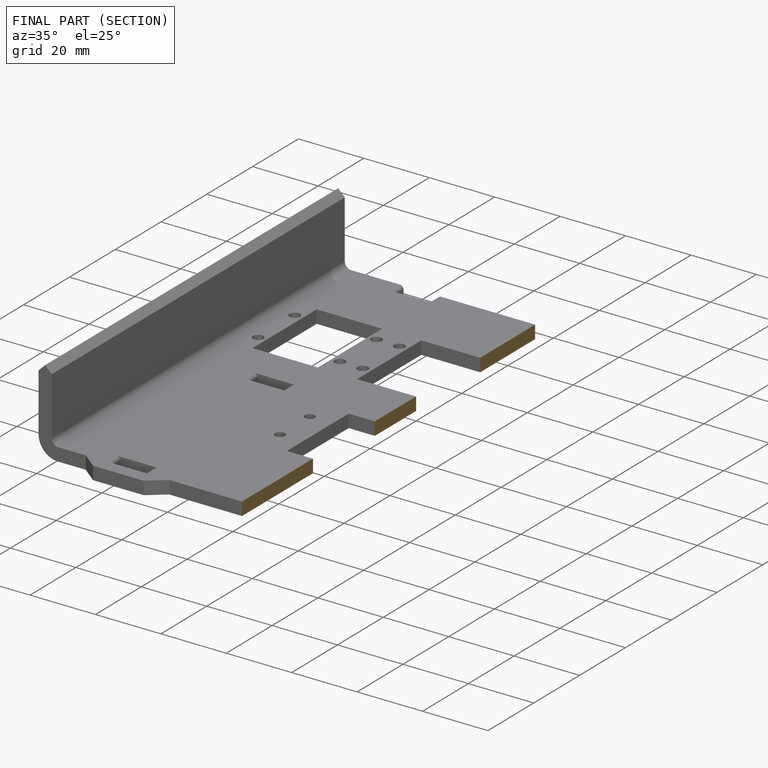
[diagram: finished part — half-section view (interior)]
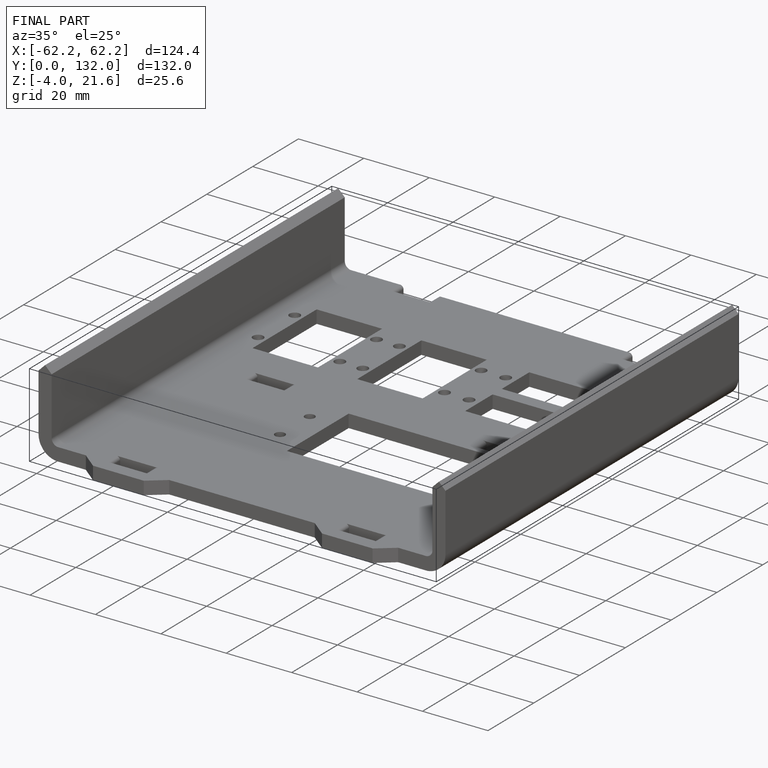
[diagram: finished part — iso view with bounding-box wireframe]
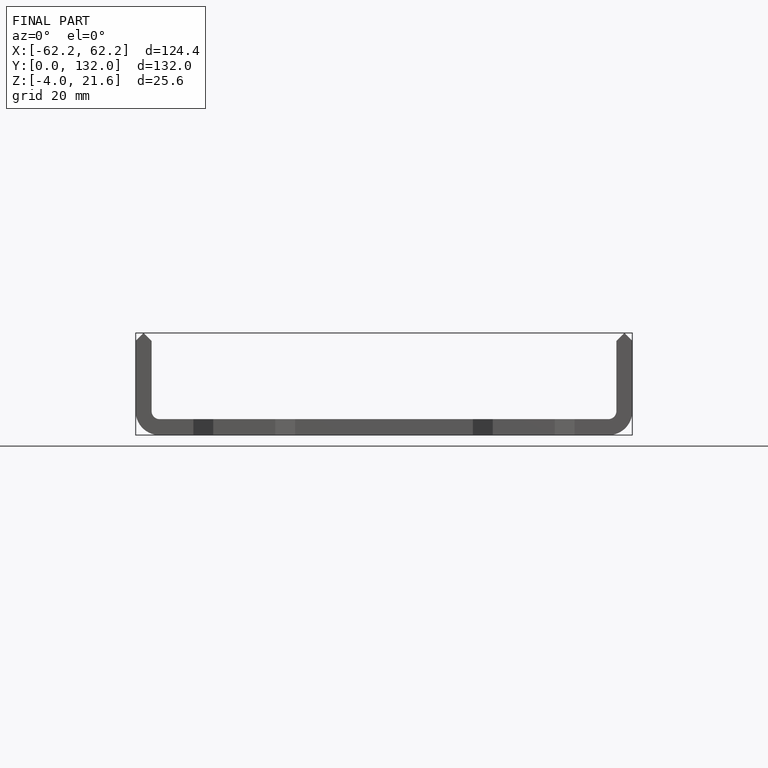
[diagram: finished part — front view with bounding-box wireframe]
